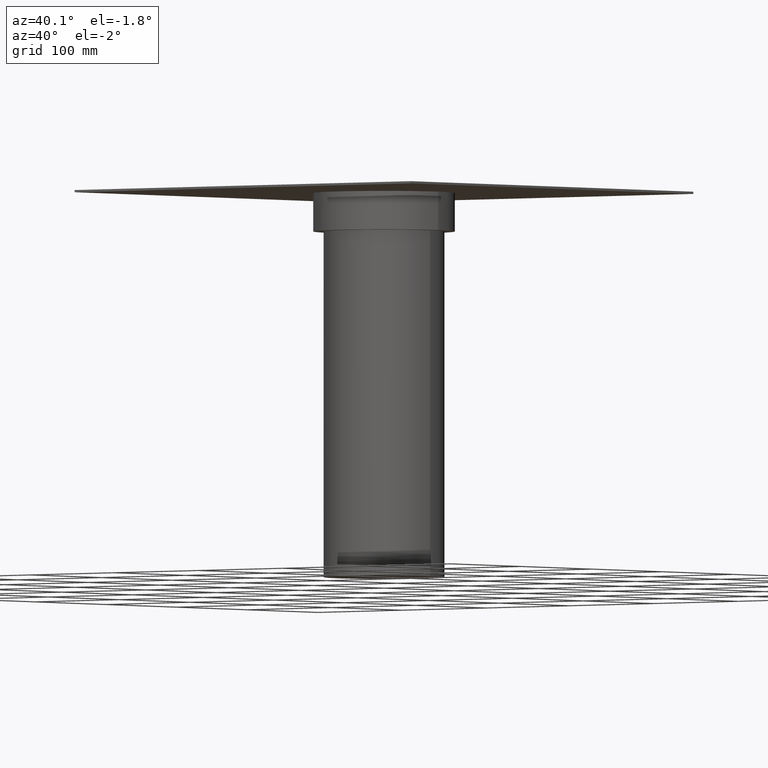
[diagram: clean part render]
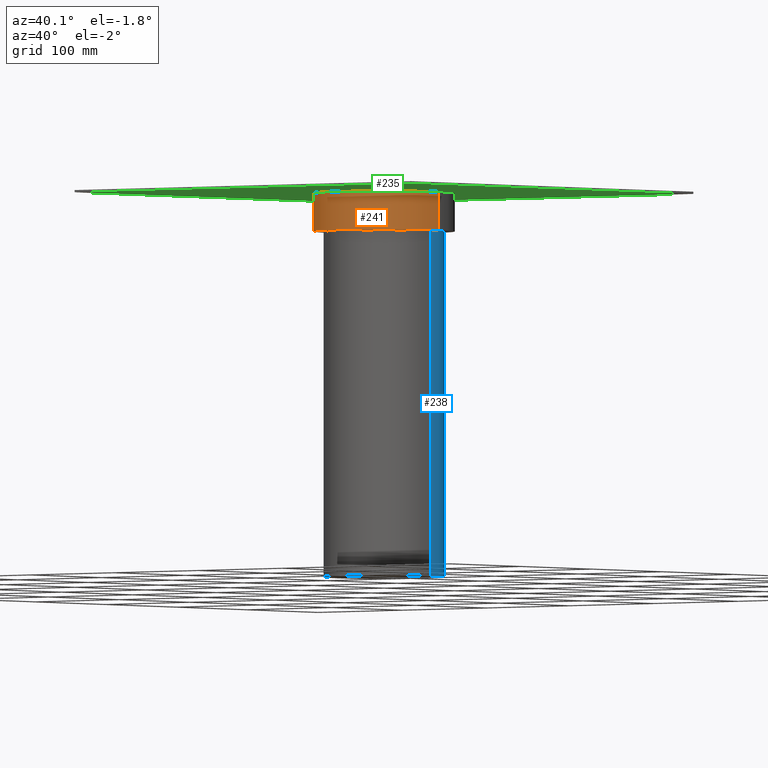
[diagram: same view with three faces highlighted in distinct colors, each labeled with its STEP entity id]
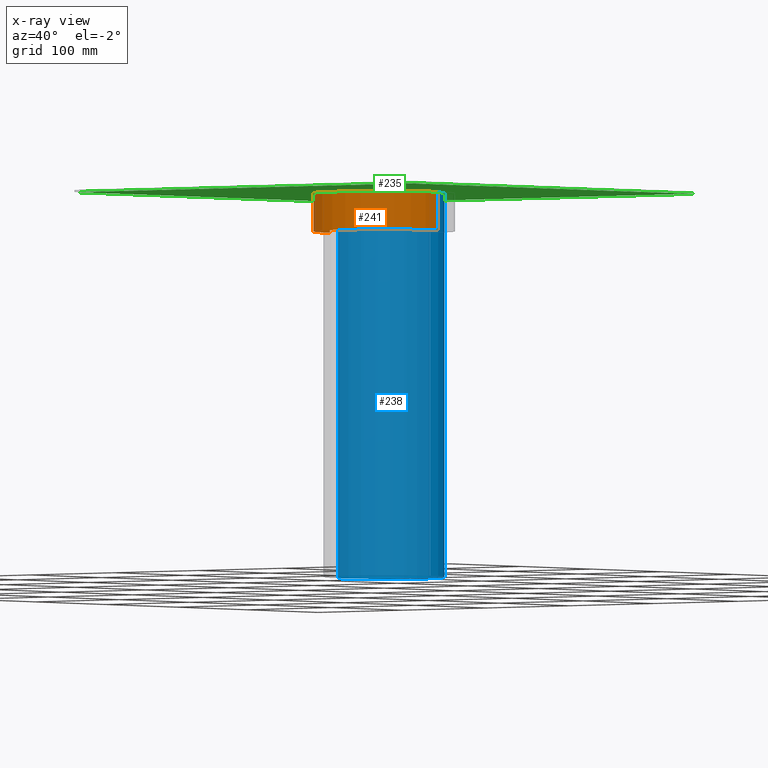
[diagram: x-ray of the same camera — body ghosted, the three highlighted faces saturated]
A machine part, auxiliary view with three faces highlighted in distinct colors.
The next image is the same camera in x-ray (body ghosted, the three faces saturated) — at least one of them is partly hidden behind the body in this view.
Their STEP definitions:

[orange] entity #241 — the highlighted cylindrical surface (partial cylindrical patch) has radius 64.5 mm, axis along (0, 0, 1).
#43=FACE_OUTER_BOUND('',#61,.T.);
#61=EDGE_LOOP('',(#211,#212,#213,#214));
#81=LINE('',#429,#99);
#82=LINE('',#432,#100);
#99=VECTOR('',#357,304.8);
#100=VECTOR('',#360,304.8);
#109=CIRCLE('',#288,64.5);
#110=CIRCLE('',#289,64.5);
#129=VERTEX_POINT('',#425);
#130=VERTEX_POINT('',#426);
#131=VERTEX_POINT('',#428);
#132=VERTEX_POINT('',#430);
#157=EDGE_CURVE('',#129,#130,#109,.T.);
#158=EDGE_CURVE('',#131,#129,#81,.T.);
#159=EDGE_CURVE('',#132,#131,#110,.T.);
#160=EDGE_CURVE('',#130,#132,#82,.T.);
#211=ORIENTED_EDGE('',*,*,#157,.F.);
#212=ORIENTED_EDGE('',*,*,#158,.F.);
#213=ORIENTED_EDGE('',*,*,#159,.F.);
#214=ORIENTED_EDGE('',*,*,#160,.F.);
#227=CYLINDRICAL_SURFACE('',#287,64.5);
#241=ADVANCED_FACE('',(#43),#227,.T.);
#287=AXIS2_PLACEMENT_3D('',#424,#353,#354);
#288=AXIS2_PLACEMENT_3D('',#427,#355,#356);
#289=AXIS2_PLACEMENT_3D('',#431,#358,#359);
#353=DIRECTION('center_axis',(3.25146821111197E-15,0.,1.));
#354=DIRECTION('ref_axis',(-1.,1.61554457443259E-15,3.14786956191393E-15));
#355=DIRECTION('center_axis',(3.25146821111197E-15,0.,1.));
#356=DIRECTION('ref_axis',(-1.,1.61554457443259E-15,3.14786956191393E-15));
#357=DIRECTION('',(3.14224836626761E-15,0.,1.));
#358=DIRECTION('center_axis',(-3.25146821111197E-15,0.,-1.));
#359=DIRECTION('ref_axis',(-1.,1.61554457443259E-15,3.14786956191393E-15));
#360=DIRECTION('',(-3.14224836626761E-15,0.,-1.));
#424=CARTESIAN_POINT('Origin',(-8.29070145869082E-13,-1.04202625050902E-13,
-255.));
#425=CARTESIAN_POINT('',(-64.5000000000007,3.59522992132949E-13,-220.));
#426=CARTESIAN_POINT('',(64.4999999999993,-2.08405250101804E-13,-220.));
#427=CARTESIAN_POINT('Origin',(-7.15268758480161E-13,-1.04202625050902E-13,
-220.));
#428=CARTESIAN_POINT('',(-64.5000000000008,0.,-255.));
#429=CARTESIAN_POINT('',(-64.5000000000008,4.16810500203607E-13,-255.));
#430=CARTESIAN_POINT('',(64.4999999999992,-1.79761496066475E-13,-255.000000000001));
#431=CARTESIAN_POINT('Origin',(-8.29070145869082E-13,-1.04202625050902E-13,
-255.));
#432=CARTESIAN_POINT('',(64.4999999999993,-1.79761496066475E-13,-220.));

[blue] entity #238 — the highlighted cylindrical surface (partial cylindrical patch) has radius 55 mm, axis along (0, 0, 1).
#40=FACE_OUTER_BOUND('',#58,.T.);
#58=EDGE_LOOP('',(#203,#204,#205,#206));
#79=LINE('',#413,#97);
#80=LINE('',#417,#98);
#97=VECTOR('',#337,304.8);
#98=VECTOR('',#340,304.8);
#107=CIRCLE('',#283,55.);
#108=CIRCLE('',#284,55.);
#125=VERTEX_POINT('',#411);
#126=VERTEX_POINT('',#412);
#127=VERTEX_POINT('',#414);
#128=VERTEX_POINT('',#416);
#151=EDGE_CURVE('',#125,#126,#79,.T.);
#153=EDGE_CURVE('',#128,#127,#80,.T.);
#155=EDGE_CURVE('',#128,#126,#107,.F.);
#156=EDGE_CURVE('',#125,#127,#108,.F.);
#203=ORIENTED_EDGE('',*,*,#151,.T.);
#204=ORIENTED_EDGE('',*,*,#155,.F.);
#205=ORIENTED_EDGE('',*,*,#153,.T.);
#206=ORIENTED_EDGE('',*,*,#156,.F.);
#226=CYLINDRICAL_SURFACE('',#282,55.);
#238=ADVANCED_FACE('',(#40),#226,.T.);
#282=AXIS2_PLACEMENT_3D('',#419,#343,#344);
#283=AXIS2_PLACEMENT_3D('',#420,#345,#346);
#284=AXIS2_PLACEMENT_3D('',#421,#347,#348);
#337=DIRECTION('',(3.14668925836615E-15,0.,1.));
#340=DIRECTION('',(-3.14668925836615E-15,0.,-1.));
#343=DIRECTION('center_axis',(3.1465766449588E-15,0.,1.));
#344=DIRECTION('ref_axis',(-1.,1.61554457443259E-15,3.04518315325757E-15));
#345=DIRECTION('center_axis',(-3.1465766449588E-15,0.,-1.));
#346=DIRECTION('ref_axis',(-1.,1.61554457443259E-15,3.04518315325757E-15));
#347=DIRECTION('center_axis',(3.1465766449588E-15,0.,1.));
#348=DIRECTION('ref_axis',(-1.,1.61554457443259E-15,3.04518315325757E-15));
#411=CARTESIAN_POINT('',(-55.0000000000034,1.70439952602638E-14,-569.999999999997));
#412=CARTESIAN_POINT('',(-55.0000000000023,3.23613988551926E-13,-219.999999999997));
#413=CARTESIAN_POINT('',(-55.0000000000034,3.72463801635433E-13,-569.999999999997));
#414=CARTESIAN_POINT('',(54.9999999999965,-1.5393035053201E-13,-569.999999999998));
#416=CARTESIAN_POINT('',(54.9999999999976,-1.67401465322631E-13,-219.999999999997));
#417=CARTESIAN_POINT('',(54.9999999999976,-1.36241001385567E-13,-219.999999999997));
#419=CARTESIAN_POINT('Origin',(-3.46009887408627E-12,-7.18109563335285E-14,
-569.999999999998));
#420=CARTESIAN_POINT('Origin',(-2.35879704835069E-12,-7.18109563335285E-14,
-219.999999999997));
#421=CARTESIAN_POINT('Origin',(-3.46009887408627E-12,-7.18109563335285E-14,
-569.999999999998));

[green] entity #235 — the highlighted planar face has unit normal (0, 0, -1).
#19=FACE_BOUND('',#54,.T.);
#25=PLANE('',#277);
#37=FACE_OUTER_BOUND('',#53,.T.);
#53=EDGE_LOOP('',(#187,#188,#189,#190));
#54=EDGE_LOOP('',(#191,#192));
#69=LINE('',#391,#87);
#73=LINE('',#398,#91);
#76=LINE('',#404,#94);
#78=LINE('',#407,#96);
#87=VECTOR('',#315,304.8);
#91=VECTOR('',#321,304.8);
#94=VECTOR('',#326,304.8);
#96=VECTOR('',#330,304.8);
#102=CIRCLE('',#269,44.4499999999999);
#104=CIRCLE('',#272,44.4499999999999);
#115=VERTEX_POINT('',#376);
#116=VERTEX_POINT('',#378);
#119=VERTEX_POINT('',#388);
#120=VERTEX_POINT('',#390);
#122=VERTEX_POINT('',#396);
#124=VERTEX_POINT('',#402);
#135=EDGE_CURVE('',#116,#115,#102,.T.);
#138=EDGE_CURVE('',#115,#116,#104,.T.);
#141=EDGE_CURVE('',#120,#119,#69,.T.);
#145=EDGE_CURVE('',#119,#122,#73,.T.);
#148=EDGE_CURVE('',#122,#124,#76,.T.);
#150=EDGE_CURVE('',#124,#120,#78,.T.);
#187=ORIENTED_EDGE('',*,*,#141,.T.);
#188=ORIENTED_EDGE('',*,*,#145,.T.);
#189=ORIENTED_EDGE('',*,*,#148,.T.);
#190=ORIENTED_EDGE('',*,*,#150,.T.);
#191=ORIENTED_EDGE('',*,*,#135,.T.);
#192=ORIENTED_EDGE('',*,*,#138,.T.);
#235=ADVANCED_FACE('',(#37,#19),#25,.T.);
#269=AXIS2_PLACEMENT_3D('',#379,#302,#303);
#272=AXIS2_PLACEMENT_3D('',#383,#309,#310);
#277=AXIS2_PLACEMENT_3D('',#408,#331,#332);
#302=DIRECTION('center_axis',(0.,0.,1.));
#303=DIRECTION('ref_axis',(1.,1.61554457443259E-15,0.));
#309=DIRECTION('center_axis',(0.,0.,1.));
#310=DIRECTION('ref_axis',(1.,1.61554457443259E-15,0.));
#315=DIRECTION('',(0.,-1.,0.));
#321=DIRECTION('',(-1.,1.69197988952874E-16,0.));
#326=DIRECTION('',(8.45989944764366E-17,1.,0.));
#330=DIRECTION('',(1.,-8.45989944764371E-17,0.));
#331=DIRECTION('center_axis',(0.,0.,-1.));
#332=DIRECTION('ref_axis',(1.,-8.45989944764371E-17,0.));
#376=CARTESIAN_POINT('',(44.4499999999999,0.,-220.));
#378=CARTESIAN_POINT('',(-44.4499999999999,-1.35358391162299E-13,-220.));
#379=CARTESIAN_POINT('Origin',(0.,-7.29742912929166E-14,-220.));
#383=CARTESIAN_POINT('Origin',(0.,-7.29742912929166E-14,-220.));
#388=CARTESIAN_POINT('',(200.,-200.000000000001,-220.));
#390=CARTESIAN_POINT('',(200.,200.000000000001,-220.));
#391=CARTESIAN_POINT('',(200.,200.000000000001,-220.));
#396=CARTESIAN_POINT('',(-200.,-200.000000000001,-220.));
#398=CARTESIAN_POINT('',(200.,-200.000000000001,-220.));
#402=CARTESIAN_POINT('',(-200.,200.000000000001,-220.));
#404=CARTESIAN_POINT('',(-200.,-200.000000000001,-220.));
#407=CARTESIAN_POINT('',(-200.,200.000000000001,-220.));
#408=CARTESIAN_POINT('Origin',(-200.,200.000000000001,-220.));